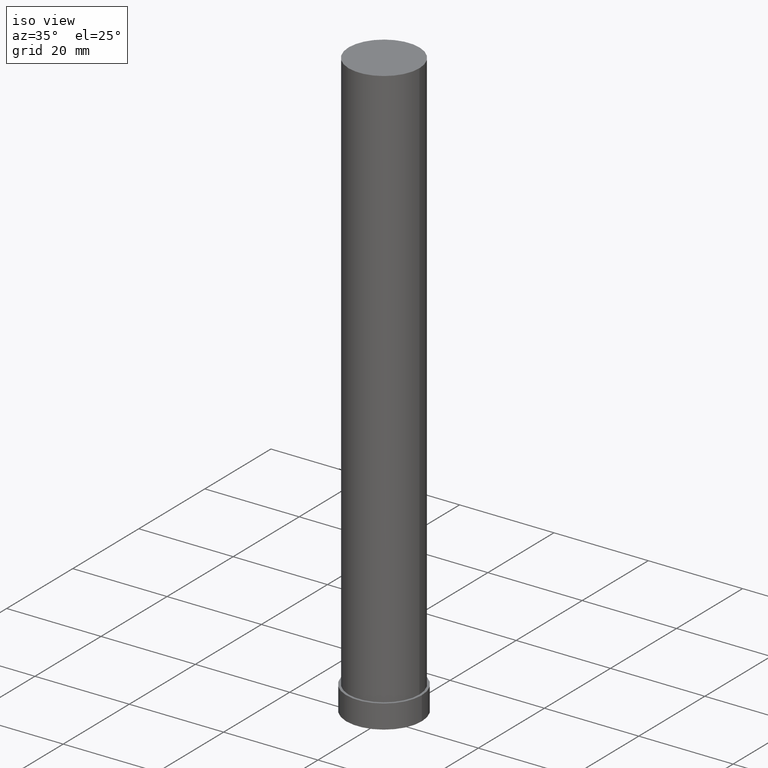
[diagram: clean part render]
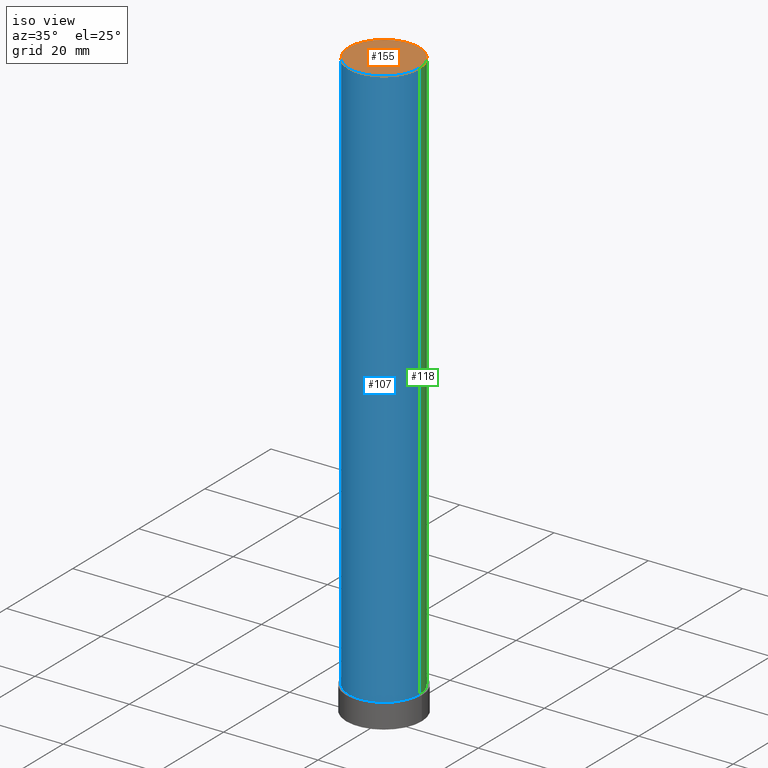
[diagram: same view with three faces highlighted in distinct colors, each labeled with its STEP entity id]
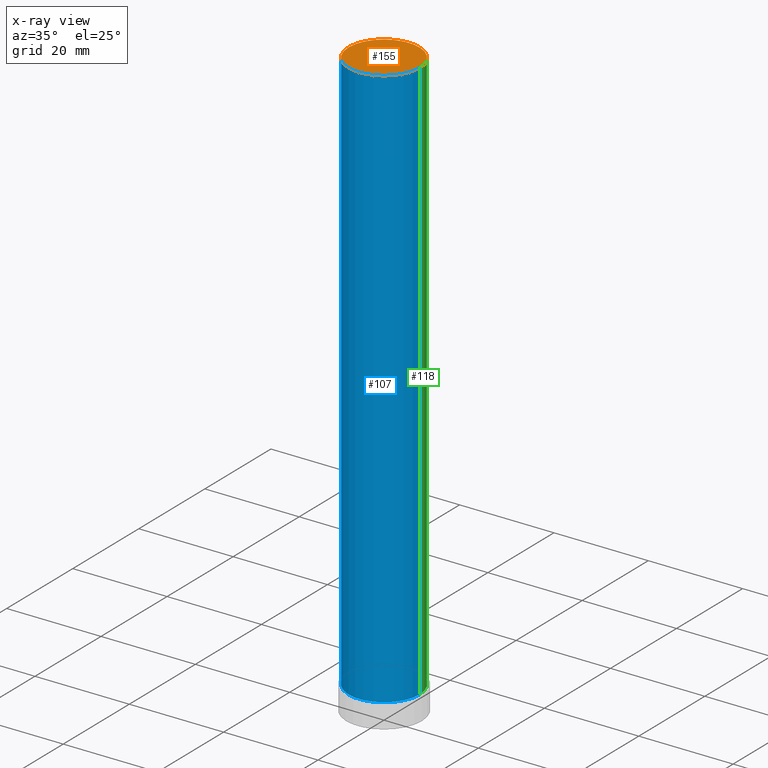
[diagram: x-ray of the same camera — body ghosted, the three highlighted faces saturated]
A machine part, iso view with three faces highlighted in distinct colors.
The next image is the same camera in x-ray (body ghosted, the three faces saturated) — at least one of them is partly hidden behind the body in this view.
Their STEP definitions:

[orange] entity #155 — the highlighted planar face has unit normal (0, 0, 1).
#9 = PLANE ( 'NONE',  #251 ) ;
#10 = CARTESIAN_POINT ( 'NONE',  ( 0.000000000000000000, 0.000000000000000000, 125.0000000000000000 ) ) ;
#43 = EDGE_LOOP ( 'NONE', ( #106, #202 ) ) ;
#68 = DIRECTION ( 'NONE',  ( 1.000000000000000000, 0.000000000000000000, 0.000000000000000000 ) ) ;
#82 = CARTESIAN_POINT ( 'NONE',  ( -7.500000000000000000, 0.000000000000000000, 125.0000000000000000 ) ) ;
#90 = CARTESIAN_POINT ( 'NONE',  ( 7.500000000000000000, 9.184850993605147944E-16, 125.0000000000000000 ) ) ;
#100 = VERTEX_POINT ( 'NONE', #82 ) ;
#106 = ORIENTED_EDGE ( 'NONE', *, *, #141, .T. ) ;
#111 = DIRECTION ( 'NONE',  ( 1.000000000000000000, 0.000000000000000000, -0.000000000000000000 ) ) ;
#128 = DIRECTION ( 'NONE',  ( 0.000000000000000000, 0.000000000000000000, 1.000000000000000000 ) ) ;
#141 = EDGE_CURVE ( 'NONE', #100, #206, #211, .T. ) ;
#155 = ADVANCED_FACE ( 'NONE', ( #190 ), #9, .T. ) ;
#166 = AXIS2_PLACEMENT_3D ( 'NONE', #212, #250, #68 ) ;
#170 = CARTESIAN_POINT ( 'NONE',  ( 0.000000000000000000, 0.000000000000000000, 125.0000000000000000 ) ) ;
#183 = AXIS2_PLACEMENT_3D ( 'NONE', #10, #128, #191 ) ;
#188 = EDGE_CURVE ( 'NONE', #206, #100, #248, .T. ) ;
#190 = FACE_OUTER_BOUND ( 'NONE', #43, .T. ) ;
#191 = DIRECTION ( 'NONE',  ( 1.000000000000000000, 0.000000000000000000, 0.000000000000000000 ) ) ;
#202 = ORIENTED_EDGE ( 'NONE', *, *, #188, .T. ) ;
#206 = VERTEX_POINT ( 'NONE', #90 ) ;
#211 = CIRCLE ( 'NONE', #166, 7.500000000000000000 ) ;
#212 = CARTESIAN_POINT ( 'NONE',  ( 0.000000000000000000, 0.000000000000000000, 125.0000000000000000 ) ) ;
#247 = DIRECTION ( 'NONE',  ( 0.000000000000000000, 0.000000000000000000, 1.000000000000000000 ) ) ;
#248 = CIRCLE ( 'NONE', #183, 7.500000000000000000 ) ;
#250 = DIRECTION ( 'NONE',  ( 0.000000000000000000, 0.000000000000000000, 1.000000000000000000 ) ) ;
#251 = AXIS2_PLACEMENT_3D ( 'NONE', #170, #247, #111 ) ;

[blue] entity #107 — the highlighted cylindrical surface (partial cylindrical patch) has radius 7.5 mm, axis along (-0, -0, -1).
#7 = EDGE_CURVE ( 'NONE', #100, #204, #225, .T. ) ;
#16 = DIRECTION ( 'NONE',  ( 1.000000000000000000, 0.000000000000000000, 0.000000000000000000 ) ) ;
#19 = DIRECTION ( 'NONE',  ( -0.000000000000000000, -0.000000000000000000, -1.000000000000000000 ) ) ;
#23 = DIRECTION ( 'NONE',  ( -0.000000000000000000, -0.000000000000000000, -1.000000000000000000 ) ) ;
#33 = EDGE_CURVE ( 'NONE', #204, #238, #244, .T. ) ;
#34 = VECTOR ( 'NONE', #85, 1000.000000000000000 ) ;
#40 = AXIS2_PLACEMENT_3D ( 'NONE', #121, #203, #16 ) ;
#63 = AXIS2_PLACEMENT_3D ( 'NONE', #205, #19, #103 ) ;
#68 = DIRECTION ( 'NONE',  ( 1.000000000000000000, 0.000000000000000000, 0.000000000000000000 ) ) ;
#82 = CARTESIAN_POINT ( 'NONE',  ( -7.500000000000000000, 0.000000000000000000, 125.0000000000000000 ) ) ;
#85 = DIRECTION ( 'NONE',  ( -0.000000000000000000, -0.000000000000000000, -1.000000000000000000 ) ) ;
#86 = EDGE_LOOP ( 'NONE', ( #105, #144, #186, #122 ) ) ;
#90 = CARTESIAN_POINT ( 'NONE',  ( 7.500000000000000000, 9.184850993605147944E-16, 125.0000000000000000 ) ) ;
#100 = VERTEX_POINT ( 'NONE', #82 ) ;
#103 = DIRECTION ( 'NONE',  ( -1.000000000000000000, 0.000000000000000000, 0.000000000000000000 ) ) ;
#105 = ORIENTED_EDGE ( 'NONE', *, *, #146, .F. ) ;
#107 = ADVANCED_FACE ( 'NONE', ( #163 ), #124, .T. ) ;
#121 = CARTESIAN_POINT ( 'NONE',  ( 0.000000000000000000, 0.000000000000000000, 5.000000000000000000 ) ) ;
#122 = ORIENTED_EDGE ( 'NONE', *, *, #33, .T. ) ;
#123 = VECTOR ( 'NONE', #23, 1000.000000000000000 ) ;
#124 = CYLINDRICAL_SURFACE ( 'NONE', #63, 7.500000000000000000 ) ;
#141 = EDGE_CURVE ( 'NONE', #100, #206, #211, .T. ) ;
#144 = ORIENTED_EDGE ( 'NONE', *, *, #141, .F. ) ;
#146 = EDGE_CURVE ( 'NONE', #206, #238, #231, .T. ) ;
#150 = CARTESIAN_POINT ( 'NONE',  ( 7.500000000000000000, 9.184850993605147944E-16, 5.000000000000000000 ) ) ;
#154 = CARTESIAN_POINT ( 'NONE',  ( 7.500000000000000000, 9.184850993605147944E-16, 125.0000000000000000 ) ) ;
#163 = FACE_OUTER_BOUND ( 'NONE', #86, .T. ) ;
#166 = AXIS2_PLACEMENT_3D ( 'NONE', #212, #250, #68 ) ;
#181 = CARTESIAN_POINT ( 'NONE',  ( -7.500000000000000000, 0.000000000000000000, 125.0000000000000000 ) ) ;
#186 = ORIENTED_EDGE ( 'NONE', *, *, #7, .T. ) ;
#193 = CARTESIAN_POINT ( 'NONE',  ( -7.500000000000000000, 0.000000000000000000, 5.000000000000000000 ) ) ;
#203 = DIRECTION ( 'NONE',  ( 0.000000000000000000, 0.000000000000000000, 1.000000000000000000 ) ) ;
#204 = VERTEX_POINT ( 'NONE', #193 ) ;
#205 = CARTESIAN_POINT ( 'NONE',  ( 0.000000000000000000, 0.000000000000000000, 125.0000000000000000 ) ) ;
#206 = VERTEX_POINT ( 'NONE', #90 ) ;
#211 = CIRCLE ( 'NONE', #166, 7.500000000000000000 ) ;
#212 = CARTESIAN_POINT ( 'NONE',  ( 0.000000000000000000, 0.000000000000000000, 125.0000000000000000 ) ) ;
#225 = LINE ( 'NONE', #181, #34 ) ;
#231 = LINE ( 'NONE', #154, #123 ) ;
#238 = VERTEX_POINT ( 'NONE', #150 ) ;
#244 = CIRCLE ( 'NONE', #40, 7.500000000000000000 ) ;
#250 = DIRECTION ( 'NONE',  ( 0.000000000000000000, 0.000000000000000000, 1.000000000000000000 ) ) ;

[green] entity #118 — the highlighted cylindrical surface (partial cylindrical patch) has radius 7.5 mm, axis along (-0, -0, -1).
#5 = ORIENTED_EDGE ( 'NONE', *, *, #146, .T. ) ;
#7 = EDGE_CURVE ( 'NONE', #100, #204, #225, .T. ) ;
#10 = CARTESIAN_POINT ( 'NONE',  ( 0.000000000000000000, 0.000000000000000000, 125.0000000000000000 ) ) ;
#23 = DIRECTION ( 'NONE',  ( -0.000000000000000000, -0.000000000000000000, -1.000000000000000000 ) ) ;
#25 = DIRECTION ( 'NONE',  ( -0.000000000000000000, -0.000000000000000000, -1.000000000000000000 ) ) ;
#28 = CARTESIAN_POINT ( 'NONE',  ( 0.000000000000000000, 0.000000000000000000, 5.000000000000000000 ) ) ;
#34 = VECTOR ( 'NONE', #85, 1000.000000000000000 ) ;
#48 = FACE_OUTER_BOUND ( 'NONE', #142, .T. ) ;
#82 = CARTESIAN_POINT ( 'NONE',  ( -7.500000000000000000, 0.000000000000000000, 125.0000000000000000 ) ) ;
#85 = DIRECTION ( 'NONE',  ( -0.000000000000000000, -0.000000000000000000, -1.000000000000000000 ) ) ;
#90 = CARTESIAN_POINT ( 'NONE',  ( 7.500000000000000000, 9.184850993605147944E-16, 125.0000000000000000 ) ) ;
#100 = VERTEX_POINT ( 'NONE', #82 ) ;
#102 = ORIENTED_EDGE ( 'NONE', *, *, #188, .F. ) ;
#110 = AXIS2_PLACEMENT_3D ( 'NONE', #28, #195, #127 ) ;
#114 = CIRCLE ( 'NONE', #110, 7.500000000000000000 ) ;
#118 = ADVANCED_FACE ( 'NONE', ( #48 ), #209, .T. ) ;
#123 = VECTOR ( 'NONE', #23, 1000.000000000000000 ) ;
#127 = DIRECTION ( 'NONE',  ( 1.000000000000000000, 0.000000000000000000, 0.000000000000000000 ) ) ;
#128 = DIRECTION ( 'NONE',  ( 0.000000000000000000, 0.000000000000000000, 1.000000000000000000 ) ) ;
#133 = EDGE_CURVE ( 'NONE', #238, #204, #114, .T. ) ;
#142 = EDGE_LOOP ( 'NONE', ( #102, #5, #161, #223 ) ) ;
#146 = EDGE_CURVE ( 'NONE', #206, #238, #231, .T. ) ;
#150 = CARTESIAN_POINT ( 'NONE',  ( 7.500000000000000000, 9.184850993605147944E-16, 5.000000000000000000 ) ) ;
#154 = CARTESIAN_POINT ( 'NONE',  ( 7.500000000000000000, 9.184850993605147944E-16, 125.0000000000000000 ) ) ;
#161 = ORIENTED_EDGE ( 'NONE', *, *, #133, .T. ) ;
#181 = CARTESIAN_POINT ( 'NONE',  ( -7.500000000000000000, 0.000000000000000000, 125.0000000000000000 ) ) ;
#183 = AXIS2_PLACEMENT_3D ( 'NONE', #10, #128, #191 ) ;
#188 = EDGE_CURVE ( 'NONE', #206, #100, #248, .T. ) ;
#191 = DIRECTION ( 'NONE',  ( 1.000000000000000000, 0.000000000000000000, 0.000000000000000000 ) ) ;
#193 = CARTESIAN_POINT ( 'NONE',  ( -7.500000000000000000, 0.000000000000000000, 5.000000000000000000 ) ) ;
#195 = DIRECTION ( 'NONE',  ( 0.000000000000000000, 0.000000000000000000, 1.000000000000000000 ) ) ;
#204 = VERTEX_POINT ( 'NONE', #193 ) ;
#206 = VERTEX_POINT ( 'NONE', #90 ) ;
#209 = CYLINDRICAL_SURFACE ( 'NONE', #239, 7.500000000000000000 ) ;
#213 = CARTESIAN_POINT ( 'NONE',  ( 0.000000000000000000, 0.000000000000000000, 125.0000000000000000 ) ) ;
#223 = ORIENTED_EDGE ( 'NONE', *, *, #7, .F. ) ;
#225 = LINE ( 'NONE', #181, #34 ) ;
#231 = LINE ( 'NONE', #154, #123 ) ;
#238 = VERTEX_POINT ( 'NONE', #150 ) ;
#239 = AXIS2_PLACEMENT_3D ( 'NONE', #213, #25, #252 ) ;
#248 = CIRCLE ( 'NONE', #183, 7.500000000000000000 ) ;
#252 = DIRECTION ( 'NONE',  ( -1.000000000000000000, 0.000000000000000000, 0.000000000000000000 ) ) ;